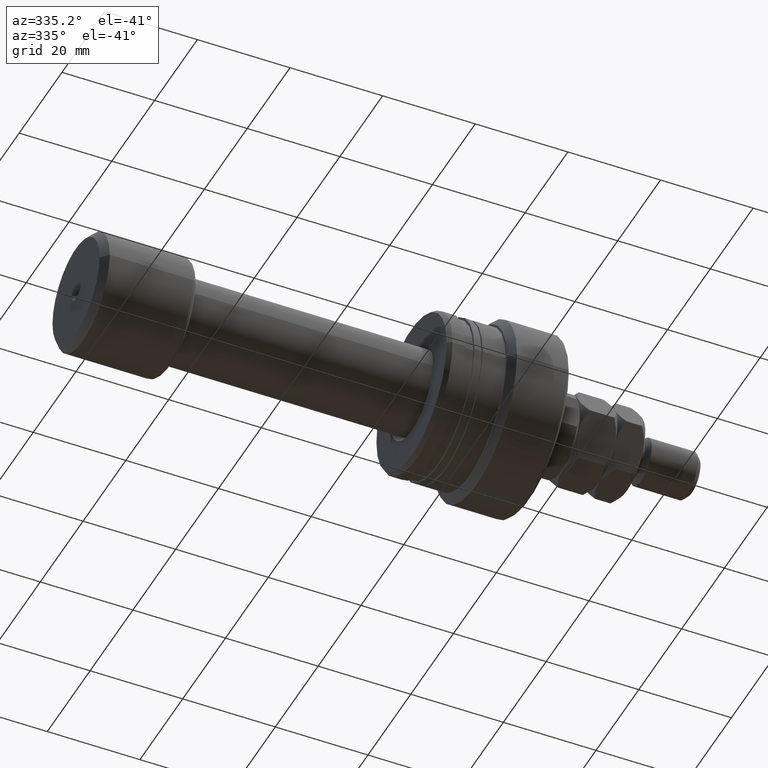
[diagram: clean part render]
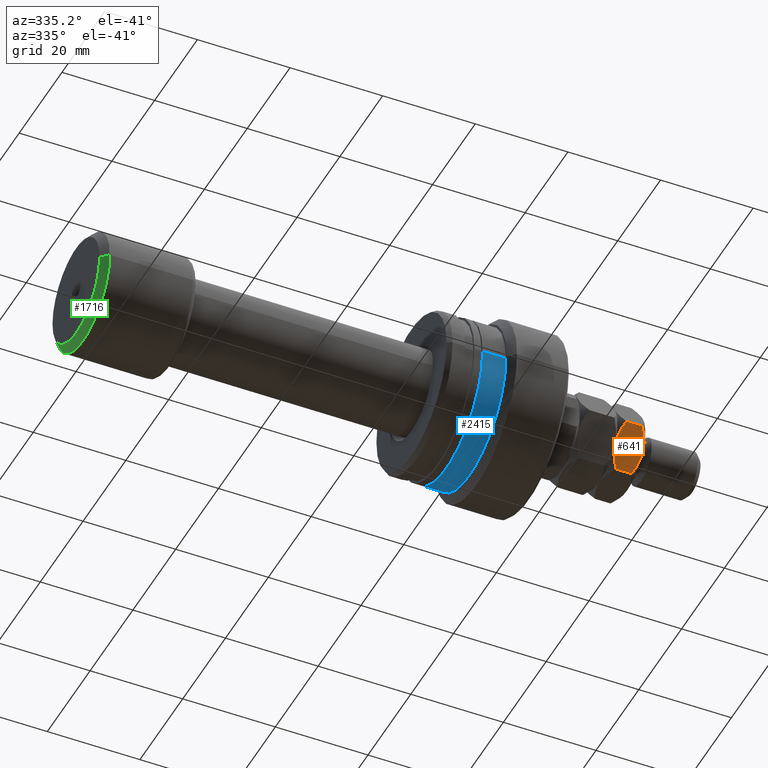
[diagram: same view with three faces highlighted in distinct colors, each labeled with its STEP entity id]
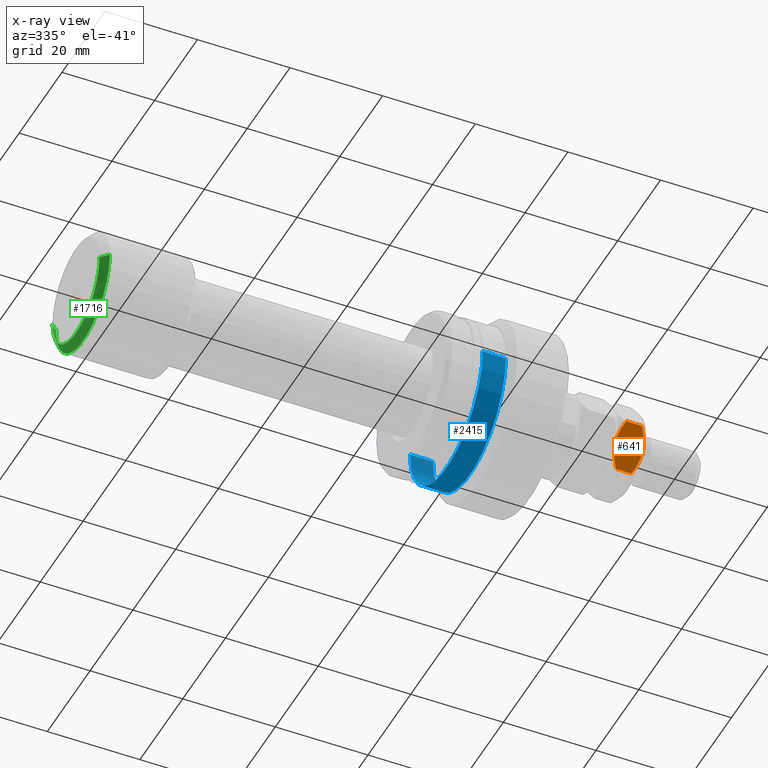
[diagram: x-ray of the same camera — body ghosted, the three highlighted faces saturated]
A machine part, auxiliary view with three faces highlighted in distinct colors.
The next image is the same camera in x-ray (body ghosted, the three faces saturated) — at least one of them is partly hidden behind the body in this view.
Their STEP definitions:

[orange] entity #641 — the highlighted planar face has unit normal (-0, 0.866, 0.5).
#150 = CARTESIAN_POINT ( 'NONE',  ( 6.092930036521918780, -6.297199779484148330, 8.253624089324652857 ) ) ;
#196 = DIRECTION ( 'NONE',  ( -0.000000000000000000, -0.000000000000000000, -1.000000000000000000 ) ) ;
#276 = FACE_OUTER_BOUND ( 'NONE', #2662, .T. ) ;
#330 = CARTESIAN_POINT ( 'NONE',  ( 2.784079206026080833, -8.207565697179237674, 8.130520287383214750 ) ) ;
#456 = CARTESIAN_POINT ( 'NONE',  ( 7.151994807070138016, -5.685748449118881886, 8.603209212420120267 ) ) ;
#641 = ADVANCED_FACE ( 'NONE', ( #276 ), #1784, .F. ) ;
#649 = CARTESIAN_POINT ( 'NONE',  ( 5.715920793973917391, -6.514866167156213805, 13.86947971261678347 ) ) ;
#703 = ORIENTED_EDGE ( 'NONE', *, *, #3814, .F. ) ;
#705 = ORIENTED_EDGE ( 'NONE', *, *, #2369, .F. ) ;
#754 = LINE ( 'NONE', #1977, #2870 ) ;
#861 = CARTESIAN_POINT ( 'NONE',  ( 2.766281260884826843, -8.217841345597564739, 13.83917829205816830 ) ) ;
#933 = CARTESIAN_POINT ( 'NONE',  ( 6.428361570398703622E-17, -9.814954576223636096, 9.314954576223632543 ) ) ;
#984 = EDGE_CURVE ( 'NONE', #3432, #2989, #2690, .T. ) ;
#1047 = B_SPLINE_CURVE_WITH_KNOTS ( 'NONE', 3,
 ( #1739, #3288, #3641, #2029, #861, #2410, #2389, #3304 ),
 .UNSPECIFIED., .F., .F.,
 ( 4, 2, 2, 4 ),
 ( 2.544313836642342607E-07, 0.002543776790731951901, 0.003815537970406096113, 0.005087299150080239023 ),
 .UNSPECIFIED. ) ;
#1124 = B_SPLINE_CURVE_WITH_KNOTS ( 'NONE', 3,
 ( #2399, #1168, #649, #1586, #2212, #1599 ),
 .UNSPECIFIED., .F., .F.,
 ( 4, 2, 4 ),
 ( 0.005087299150080239023, 0.007613005268011858312, 0.01013871138594347673 ),
 .UNSPECIFIED. ) ;
#1125 = CARTESIAN_POINT ( 'NONE',  ( 8.499999999999996447, -4.907477288111814495, 12.68504542377636923 ) ) ;
#1168 = CARTESIAN_POINT ( 'NONE',  ( 4.989245346831673089, -6.934412432177277097, 13.99999999999999822 ) ) ;
#1188 = VECTOR ( 'NONE', #196, 1000.000000000000000 ) ;
#1299 = VERTEX_POINT ( 'NONE', #1125 ) ;
#1315 = DIRECTION ( 'NONE',  ( -0.000000000000000000, -0.000000000000000000, -1.000000000000000000 ) ) ;
#1331 = ORIENTED_EDGE ( 'NONE', *, *, #2546, .F. ) ;
#1382 = CARTESIAN_POINT ( 'NONE',  ( 4.249999999999994671, -7.361215932167728404, 8.000000000000000000 ) ) ;
#1432 = AXIS2_PLACEMENT_3D ( 'NONE', #1482, #3994, #1976 ) ;
#1433 = CARTESIAN_POINT ( 'NONE',  ( 8.499999999999996447, -4.907477288111814495, 9.314954576223630767 ) ) ;
#1482 = CARTESIAN_POINT ( 'NONE',  ( 4.887551235985699338E-16, -9.814954576223636096, 14.00000000000000000 ) ) ;
#1586 = CARTESIAN_POINT ( 'NONE',  ( 7.149107353189444680, -5.687415521394174611, 13.39906158726387986 ) ) ;
#1599 = CARTESIAN_POINT ( 'NONE',  ( 8.499999999999996447, -4.907477288111814495, 12.68504542377636923 ) ) ;
#1648 = ORIENTED_EDGE ( 'NONE', *, *, #1892, .F. ) ;
#1671 = ORIENTED_EDGE ( 'NONE', *, *, #984, .F. ) ;
#1672 = CARTESIAN_POINT ( 'NONE',  ( 5.733718739115168717, -6.504590518737889404, 8.160821707941831704 ) ) ;
#1739 = CARTESIAN_POINT ( 'NONE',  ( -5.628679446399007628E-16, -9.814954576223636096, 12.68504542377636568 ) ) ;
#1783 = LINE ( 'NONE', #2993, #1188 ) ;
#1784 = PLANE ( 'NONE',  #1432 ) ;
#1892 = EDGE_CURVE ( 'NONE', #2437, #3432, #3454, .T. ) ;
#1976 = DIRECTION ( 'NONE',  ( -0.8660254037844383745, -0.5000000000000003331, 0.000000000000000000 ) ) ;
#1977 = CARTESIAN_POINT ( 'NONE',  ( 8.499999999999996447, -4.907477288111814495, 14.00000000000000000 ) ) ;
#1981 = CARTESIAN_POINT ( 'NONE',  ( 8.499999999999996447, -4.907477288111814495, 9.314954576223630767 ) ) ;
#1983 = CARTESIAN_POINT ( 'NONE',  ( -5.628679446399007628E-16, -9.814954576223636096, 12.68504542377636568 ) ) ;
#2029 = CARTESIAN_POINT ( 'NONE',  ( 2.407069963478077668, -8.425232084851300485, 13.74637591067534181 ) ) ;
#2212 = CARTESIAN_POINT ( 'NONE',  ( 7.834310611062744734, -5.291813236011414290, 13.06938137167606939 ) ) ;
#2369 = EDGE_CURVE ( 'NONE', #1299, #2437, #754, .T. ) ;
#2389 = CARTESIAN_POINT ( 'NONE',  ( 3.877770021349440821, -7.576123010542071157, 13.99999999999999289 ) ) ;
#2399 = CARTESIAN_POINT ( 'NONE',  ( 4.250000000000000000, -7.361215932167723963, 14.00000000000000000 ) ) ;
#2410 = CARTESIAN_POINT ( 'NONE',  ( 3.499970675361009143, -7.794245564648159430, 13.96626325040163330 ) ) ;
#2437 = VERTEX_POINT ( 'NONE', #1433 ) ;
#2462 = CARTESIAN_POINT ( 'NONE',  ( 0.6656893889372508255, -9.430618628324038966, 8.930618628323932384 ) ) ;
#2546 = EDGE_CURVE ( 'NONE', #3751, #1299, #1124, .T. ) ;
#2662 = EDGE_LOOP ( 'NONE', ( #1648, #705, #1331, #703, #2892, #1671 ) ) ;
#2690 = B_SPLINE_CURVE_WITH_KNOTS ( 'NONE', 3,
 ( #3740, #2791, #330, #2754, #2462, #933 ),
 .UNSPECIFIED., .F., .F.,
 ( 4, 2, 4 ),
 ( 0.005087299150080240757, 0.007613005268011858312, 0.01013871138594347673 ),
 .UNSPECIFIED. ) ;
#2714 = CARTESIAN_POINT ( 'NONE',  ( 4.249999999999994671, -7.361215932167728404, 8.000000000000000000 ) ) ;
#2754 = CARTESIAN_POINT ( 'NONE',  ( 1.350892646810553321, -9.035016342941275980, 8.600938412736123695 ) ) ;
#2791 = CARTESIAN_POINT ( 'NONE',  ( 3.510754653168321582, -7.788019432158173494, 8.000000000000000000 ) ) ;
#2870 = VECTOR ( 'NONE', #1315, 1000.000000000000000 ) ;
#2892 = ORIENTED_EDGE ( 'NONE', *, *, #3822, .T. ) ;
#2921 = CARTESIAN_POINT ( 'NONE',  ( 4.622229978650554294, -7.146308853793378546, 8.000000000000001776 ) ) ;
#2989 = VERTEX_POINT ( 'NONE', #3346 ) ;
#2993 = CARTESIAN_POINT ( 'NONE',  ( 4.887551235985699338E-16, -9.814954576223636096, 14.00000000000000000 ) ) ;
#3288 = CARTESIAN_POINT ( 'NONE',  ( 0.6664608216042844369, -9.430173241466061285, 13.06982675853393516 ) ) ;
#3291 = VERTEX_POINT ( 'NONE', #1983 ) ;
#3304 = CARTESIAN_POINT ( 'NONE',  ( 4.250000000000000000, -7.361215932167723963, 14.00000000000000000 ) ) ;
#3346 = CARTESIAN_POINT ( 'NONE',  ( 6.428361570398703622E-17, -9.814954576223636096, 9.314954576223632543 ) ) ;
#3432 = VERTEX_POINT ( 'NONE', #2714 ) ;
#3454 = B_SPLINE_CURVE_WITH_KNOTS ( 'NONE', 3,
 ( #1981, #3785, #456, #150, #1672, #3806, #2921, #1382 ),
 .UNSPECIFIED., .F., .F.,
 ( 4, 2, 2, 4 ),
 ( 2.544313836655798784E-07, 0.002543776790731953202, 0.003815537970406096980, 0.005087299150080240757 ),
 .UNSPECIFIED. ) ;
#3641 = CARTESIAN_POINT ( 'NONE',  ( 1.348005192929855101, -9.036683415216568704, 13.39679078757987085 ) ) ;
#3740 = CARTESIAN_POINT ( 'NONE',  ( 4.249999999999994671, -7.361215932167728404, 8.000000000000000000 ) ) ;
#3751 = VERTEX_POINT ( 'NONE', #3820 ) ;
#3785 = CARTESIAN_POINT ( 'NONE',  ( 7.833539178395709790, -5.292258622869385754, 8.930173241466057732 ) ) ;
#3806 = CARTESIAN_POINT ( 'NONE',  ( 5.000029324638988193, -6.928186299687292937, 8.033736749598364923 ) ) ;
#3814 = EDGE_CURVE ( 'NONE', #3291, #3751, #1047, .T. ) ;
#3820 = CARTESIAN_POINT ( 'NONE',  ( 4.250000000000000000, -7.361215932167723963, 14.00000000000000000 ) ) ;
#3822 = EDGE_CURVE ( 'NONE', #3291, #2989, #1783, .T. ) ;
#3994 = DIRECTION ( 'NONE',  ( -0.5000000000000004441, 0.8660254037844384856, 0.000000000000000000 ) ) ;

[blue] entity #2415 — the highlighted cylindrical surface (partial cylindrical patch) has radius 17 mm, axis along (-1, 0, 0).
#187 = FACE_OUTER_BOUND ( 'NONE', #806, .T. ) ;
#237 = CARTESIAN_POINT ( 'NONE',  ( -19.00000000000000000, -17.00000000000000355, 0.000000000000000000 ) ) ;
#252 = DIRECTION ( 'NONE',  ( -1.000000000000000000, 9.810081908519753690E-16, -0.000000000000000000 ) ) ;
#288 = VERTEX_POINT ( 'NONE', #1339 ) ;
#416 = DIRECTION ( 'NONE',  ( -1.000000000000000000, 9.810081908519753690E-16, -0.000000000000000000 ) ) ;
#487 = ORIENTED_EDGE ( 'NONE', *, *, #2444, .F. ) ;
#529 = DIRECTION ( 'NONE',  ( -1.000000000000000000, 9.810081908519753690E-16, -0.000000000000000000 ) ) ;
#806 = EDGE_LOOP ( 'NONE', ( #487, #3824, #2827, #2950 ) ) ;
#881 = VERTEX_POINT ( 'NONE', #3958 ) ;
#1023 = CARTESIAN_POINT ( 'NONE',  ( -18.99999999999998224, -1.106579472735248521E-14, 0.000000000000000000 ) ) ;
#1116 = AXIS2_PLACEMENT_3D ( 'NONE', #3198, #416, #1636 ) ;
#1133 = DIRECTION ( 'NONE',  ( -1.020425574104004788E-15, -1.000000000000000000, 0.000000000000000000 ) ) ;
#1135 = EDGE_CURVE ( 'NONE', #3449, #3417, #3582, .T. ) ;
#1339 = CARTESIAN_POINT ( 'NONE',  ( -13.99999999999996447, 16.99999999999997158, 2.081899558550499096E-15 ) ) ;
#1601 = DIRECTION ( 'NONE',  ( -1.020425574104004591E-15, -1.000000000000000000, 0.000000000000000000 ) ) ;
#1636 = DIRECTION ( 'NONE',  ( -1.020425574104004985E-15, -1.000000000000000000, 0.000000000000000000 ) ) ;
#1663 = EDGE_CURVE ( 'NONE', #881, #3417, #3961, .T. ) ;
#1944 = EDGE_CURVE ( 'NONE', #288, #881, #2540, .T. ) ;
#1951 = VECTOR ( 'NONE', #252, 1000.000000000000000 ) ;
#2015 = CYLINDRICAL_SURFACE ( 'NONE', #2414, 16.99999999999998934 ) ;
#2024 = CARTESIAN_POINT ( 'NONE',  ( -18.99999999999996447, 16.99999999999998224, 2.081899558550499885E-15 ) ) ;
#2256 = DIRECTION ( 'NONE',  ( -1.000000000000000000, 9.810081908519753690E-16, -0.000000000000000000 ) ) ;
#2414 = AXIS2_PLACEMENT_3D ( 'NONE', #2964, #529, #1133 ) ;
#2415 = ADVANCED_FACE ( 'NONE', ( #187 ), #2015, .T. ) ;
#2444 = EDGE_CURVE ( 'NONE', #288, #3449, #3597, .T. ) ;
#2540 = CIRCLE ( 'NONE', #1116, 16.99999999999998579 ) ;
#2827 = ORIENTED_EDGE ( 'NONE', *, *, #1663, .T. ) ;
#2939 = VECTOR ( 'NONE', #3274, 1000.000000000000000 ) ;
#2950 = ORIENTED_EDGE ( 'NONE', *, *, #1135, .F. ) ;
#2964 = CARTESIAN_POINT ( 'NONE',  ( -30.28002276692732408, 0.000000000000000000, 0.000000000000000000 ) ) ;
#3011 = CARTESIAN_POINT ( 'NONE',  ( -30.28002276692734185, -16.99999999999998934, 0.000000000000000000 ) ) ;
#3198 = CARTESIAN_POINT ( 'NONE',  ( -13.99999999999998046, -1.597083568161236364E-14, 0.000000000000000000 ) ) ;
#3274 = DIRECTION ( 'NONE',  ( -1.000000000000000000, 9.810081908519753690E-16, -0.000000000000000000 ) ) ;
#3417 = VERTEX_POINT ( 'NONE', #237 ) ;
#3449 = VERTEX_POINT ( 'NONE', #2024 ) ;
#3582 = CIRCLE ( 'NONE', #3650, 16.99999999999999289 ) ;
#3597 = LINE ( 'NONE', #3615, #2939 ) ;
#3615 = CARTESIAN_POINT ( 'NONE',  ( -30.28002276692730632, 16.99999999999998934, 2.081899558550499491E-15 ) ) ;
#3650 = AXIS2_PLACEMENT_3D ( 'NONE', #1023, #2256, #1601 ) ;
#3824 = ORIENTED_EDGE ( 'NONE', *, *, #1944, .T. ) ;
#3958 = CARTESIAN_POINT ( 'NONE',  ( -13.99999999999999822, -17.00000000000000355, 0.000000000000000000 ) ) ;
#3961 = LINE ( 'NONE', #3011, #1951 ) ;

[green] entity #1716 — the highlighted conical surface has half-angle 45 deg.
#24 = EDGE_CURVE ( 'NONE', #846, #2701, #780, .T. ) ;
#29 = DIRECTION ( 'NONE',  ( -1.000000000000000000, -1.069542322069065801E-17, -0.000000000000000000 ) ) ;
#95 = LINE ( 'NONE', #1021, #1257 ) ;
#202 = CARTESIAN_POINT ( 'NONE',  ( 1.500000000000001554, 1.604313483103600319E-17, 0.000000000000000000 ) ) ;
#203 = AXIS2_PLACEMENT_3D ( 'NONE', #657, #29, #676 ) ;
#657 = CARTESIAN_POINT ( 'NONE',  ( 1.229461823634491368E-15, 1.314961453745302249E-32, 0.000000000000000000 ) ) ;
#676 = DIRECTION ( 'NONE',  ( 1.069542322069065647E-17, -1.000000000000000000, 0.000000000000000000 ) ) ;
#728 = ORIENTED_EDGE ( 'NONE', *, *, #820, .T. ) ;
#735 = AXIS2_PLACEMENT_3D ( 'NONE', #964, #1583, #3086 ) ;
#780 = CIRCLE ( 'NONE', #203, 11.00000000000000178 ) ;
#820 = EDGE_CURVE ( 'NONE', #1540, #2793, #1489, .T. ) ;
#831 = DIRECTION ( 'NONE',  ( 1.734723475976807094E-17, -1.000000000000000000, 0.000000000000000000 ) ) ;
#846 = VERTEX_POINT ( 'NONE', #2706 ) ;
#964 = CARTESIAN_POINT ( 'NONE',  ( 1.229461823634491368E-15, 1.314961453745302249E-32, 0.000000000000000000 ) ) ;
#1019 = CARTESIAN_POINT ( 'NONE',  ( 1.111812168206894135E-15, 11.00000000000000178, 0.000000000000000000 ) ) ;
#1021 = CARTESIAN_POINT ( 'NONE',  ( 1.347111479062088602E-15, -11.00000000000000178, 1.347111479062088602E-15 ) ) ;
#1036 = LINE ( 'NONE', #1019, #2228 ) ;
#1187 = ORIENTED_EDGE ( 'NONE', *, *, #3281, .T. ) ;
#1257 = VECTOR ( 'NONE', #1948, 999.9999999999998863 ) ;
#1345 = DIRECTION ( 'NONE',  ( 0.7071067811865477948, 0.7071067811865473507, 0.000000000000000000 ) ) ;
#1489 = CIRCLE ( 'NONE', #3973, 12.50000000000000000 ) ;
#1525 = FACE_OUTER_BOUND ( 'NONE', #1571, .T. ) ;
#1540 = VERTEX_POINT ( 'NONE', #2020 ) ;
#1571 = EDGE_LOOP ( 'NONE', ( #3749, #3772, #1187, #728 ) ) ;
#1583 = DIRECTION ( 'NONE',  ( 1.000000000000000000, 1.069542322069065801E-17, 0.000000000000000000 ) ) ;
#1716 = ADVANCED_FACE ( 'NONE', ( #1525 ), #2864, .T. ) ;
#1948 = DIRECTION ( 'NONE',  ( 0.7071067811865477948, -0.7071067811865473507, 8.659560562354931626E-17 ) ) ;
#2020 = CARTESIAN_POINT ( 'NONE',  ( 1.500000000000001332, 12.50000000000000000, 0.000000000000000000 ) ) ;
#2228 = VECTOR ( 'NONE', #1345, 999.9999999999998863 ) ;
#2293 = CARTESIAN_POINT ( 'NONE',  ( 1.500000000000001776, -12.50000000000000000, 1.530808498934191521E-15 ) ) ;
#2701 = VERTEX_POINT ( 'NONE', #2830 ) ;
#2706 = CARTESIAN_POINT ( 'NONE',  ( 1.111812168206894135E-15, 11.00000000000000178, 0.000000000000000000 ) ) ;
#2793 = VERTEX_POINT ( 'NONE', #2293 ) ;
#2830 = CARTESIAN_POINT ( 'NONE',  ( 1.347111479062088602E-15, -11.00000000000000178, 1.438959988998140160E-15 ) ) ;
#2864 = CONICAL_SURFACE ( 'NONE', #735, 11.00000000000000178, 0.7853981633974480570 ) ;
#2868 = EDGE_CURVE ( 'NONE', #2701, #2793, #95, .T. ) ;
#3086 = DIRECTION ( 'NONE',  ( -1.069542322069065647E-17, 1.000000000000000000, 0.000000000000000000 ) ) ;
#3281 = EDGE_CURVE ( 'NONE', #846, #1540, #1036, .T. ) ;
#3353 = DIRECTION ( 'NONE',  ( -1.000000000000000000, -1.069542322069065801E-17, -0.000000000000000000 ) ) ;
#3749 = ORIENTED_EDGE ( 'NONE', *, *, #2868, .F. ) ;
#3772 = ORIENTED_EDGE ( 'NONE', *, *, #24, .F. ) ;
#3973 = AXIS2_PLACEMENT_3D ( 'NONE', #202, #3353, #831 ) ;